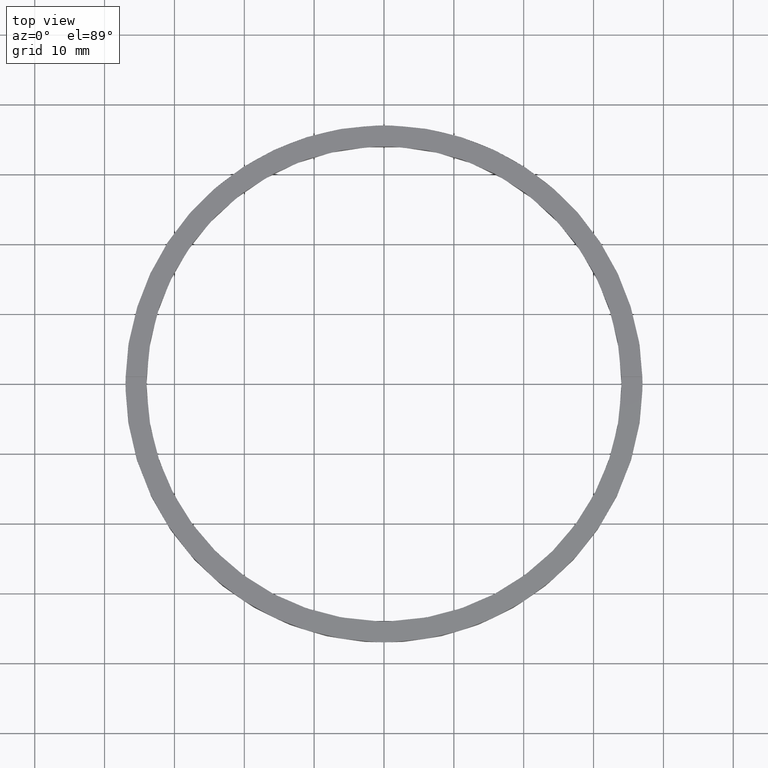
[diagram: clean part render]
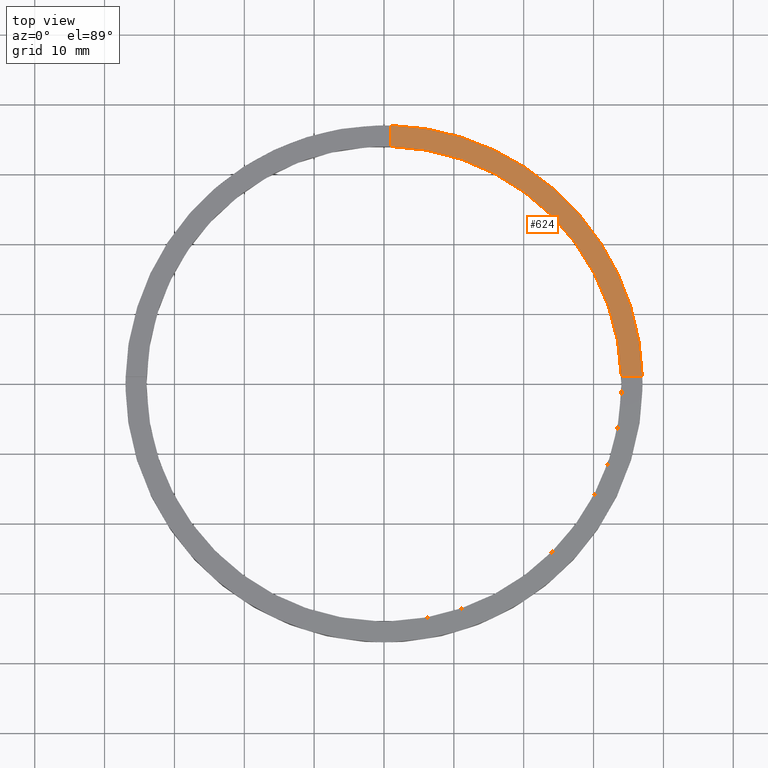
[diagram: same view with one face highlighted and labeled with its STEP entity id]
A machine part, top view. The second image highlights one B-rep face of the part: STEP entity #624.
In plain terms, the highlighted planar face has unit normal (0, 0, 1).
Its self-contained STEP definition (entity closure, byte-faithful):
#10 = ORIENTED_EDGE ( 'NONE', *, *, #94, .F. ) ;
#48 = VECTOR ( 'NONE', #645, 1000.000000000000000 ) ;
#82 = CIRCLE ( 'NONE', #138, 37.00000000000000000 ) ;
#94 = EDGE_CURVE ( 'NONE', #657, #417, #161, .T. ) ;
#128 = CARTESIAN_POINT ( 'NONE',  ( 0.000000000000000000, 0.000000000000000000, 3.500000000000000000 ) ) ;
#138 = AXIS2_PLACEMENT_3D ( 'NONE', #678, #216, #483 ) ;
#156 = AXIS2_PLACEMENT_3D ( 'NONE', #128, #730, #637 ) ;
#161 = CIRCLE ( 'NONE', #156, 34.00000000000000000 ) ;
#170 = AXIS2_PLACEMENT_3D ( 'NONE', #766, #387, #525 ) ;
#182 = ORIENTED_EDGE ( 'NONE', *, *, #708, .F. ) ;
#188 = VERTEX_POINT ( 'NONE', #385 ) ;
#200 = CARTESIAN_POINT ( 'NONE',  ( 0.9999999999999749090, 26.99999999999999645, 3.500000000000000000 ) ) ;
#216 = DIRECTION ( 'NONE',  ( 0.000000000000000000, 0.000000000000000000, 1.000000000000000000 ) ) ;
#290 = EDGE_CURVE ( 'NONE', #417, #520, #566, .T. ) ;
#330 = LINE ( 'NONE', #764, #341 ) ;
#341 = VECTOR ( 'NONE', #755, 1000.000000000000000 ) ;
#385 = CARTESIAN_POINT ( 'NONE',  ( 36.98648401781386497, 0.9999999999998423483, 3.500000000000000000 ) ) ;
#387 = DIRECTION ( 'NONE',  ( 0.000000000000000000, 0.000000000000000000, 1.000000000000000000 ) ) ;
#417 = VERTEX_POINT ( 'NONE', #614 ) ;
#459 = ORIENTED_EDGE ( 'NONE', *, *, #551, .T. ) ;
#476 = PLANE ( 'NONE',  #170 ) ;
#483 = DIRECTION ( 'NONE',  ( 1.000000000000000000, 0.000000000000000000, 0.000000000000000000 ) ) ;
#520 = VERTEX_POINT ( 'NONE', #535 ) ;
#523 = ORIENTED_EDGE ( 'NONE', *, *, #290, .F. ) ;
#525 = DIRECTION ( 'NONE',  ( 1.000000000000000000, 0.000000000000000000, -0.000000000000000000 ) ) ;
#535 = CARTESIAN_POINT ( 'NONE',  ( 0.9999999999999749090, 36.98648401781385786, 3.500000000000000000 ) ) ;
#551 = EDGE_CURVE ( 'NONE', #188, #520, #82, .T. ) ;
#566 = LINE ( 'NONE', #200, #48 ) ;
#581 = FACE_OUTER_BOUND ( 'NONE', #709, .T. ) ;
#614 = CARTESIAN_POINT ( 'NONE',  ( 0.9999999999999749090, 33.98529093593285921, 3.500000000000000000 ) ) ;
#624 = ADVANCED_FACE ( 'NONE', ( #581 ), #476, .T. ) ;
#637 = DIRECTION ( 'NONE',  ( 1.000000000000000000, 0.000000000000000000, 0.000000000000000000 ) ) ;
#645 = DIRECTION ( 'NONE',  ( 0.000000000000000000, 1.000000000000000000, 0.000000000000000000 ) ) ;
#657 = VERTEX_POINT ( 'NONE', #776 ) ;
#678 = CARTESIAN_POINT ( 'NONE',  ( 0.000000000000000000, 0.000000000000000000, 3.500000000000000000 ) ) ;
#708 = EDGE_CURVE ( 'NONE', #188, #657, #330, .T. ) ;
#709 = EDGE_LOOP ( 'NONE', ( #523, #10, #182, #459 ) ) ;
#730 = DIRECTION ( 'NONE',  ( 0.000000000000000000, 0.000000000000000000, 1.000000000000000000 ) ) ;
#755 = DIRECTION ( 'NONE',  ( -1.000000000000000000, -6.505213034913025371E-17, -0.000000000000000000 ) ) ;
#764 = CARTESIAN_POINT ( 'NONE',  ( 26.99999999999998934, 0.9999999999998416822, 3.500000000000000000 ) ) ;
#766 = CARTESIAN_POINT ( 'NONE',  ( 0.000000000000000000, 0.000000000000000000, 3.500000000000000000 ) ) ;
#776 = CARTESIAN_POINT ( 'NONE',  ( 33.98529093593285921, 0.9999999999998421263, 3.500000000000000000 ) ) ;